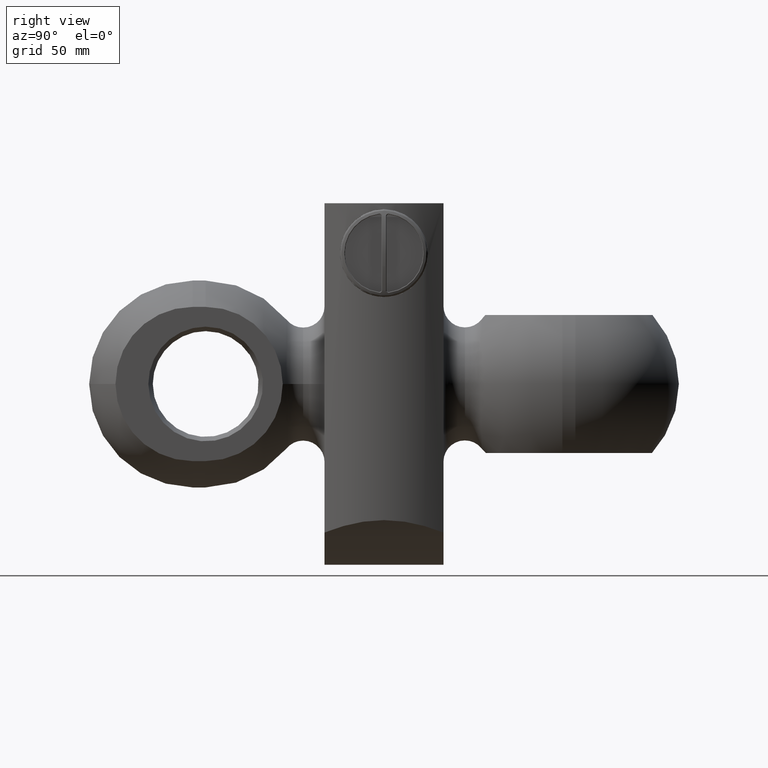
[diagram: clean part render]
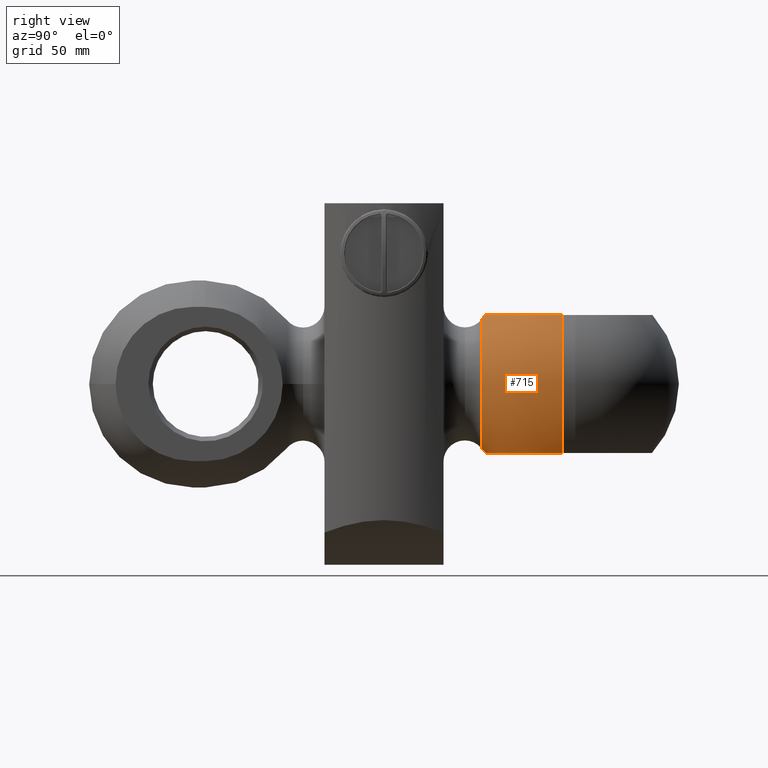
[diagram: same view with one face highlighted and labeled with its STEP entity id]
A machine part, right view. The second image highlights one B-rep face of the part: STEP entity #715.
In plain terms, the highlighted spherical surface has radius 43.5 mm.
Its self-contained STEP definition (entity closure, byte-faithful):
#28=SPHERICAL_SURFACE('',#843,43.5);
#107=FACE_OUTER_BOUND('',#155,.T.);
#155=EDGE_LOOP('',(#620,#621,#622,#623,#624,#625,#626,#627,#628));
#268=CIRCLE('',#834,32.422985673747);
#270=CIRCLE('',#837,32.422985673747);
#271=CIRCLE('',#838,32.422985673747);
#274=CIRCLE('',#842,43.5);
#275=CIRCLE('',#844,43.5);
#276=CIRCLE('',#845,27.1771428571429);
#277=CIRCLE('',#846,27.1771428571429);
#278=CIRCLE('',#847,43.5);
#341=VERTEX_POINT('',#1541);
#342=VERTEX_POINT('',#1543);
#345=VERTEX_POINT('',#1550);
#346=VERTEX_POINT('',#1552);
#347=VERTEX_POINT('',#1554);
#349=VERTEX_POINT('',#1563);
#350=VERTEX_POINT('',#1565);
#434=EDGE_CURVE('',#342,#341,#268,.T.);
#438=EDGE_CURVE('',#346,#345,#270,.T.);
#439=EDGE_CURVE('',#347,#346,#271,.T.);
#443=EDGE_CURVE('',#341,#347,#274,.T.);
#444=EDGE_CURVE('',#346,#349,#275,.T.);
#445=EDGE_CURVE('',#350,#349,#276,.T.);
#446=EDGE_CURVE('',#349,#350,#277,.T.);
#447=EDGE_CURVE('',#345,#342,#278,.T.);
#620=ORIENTED_EDGE('',*,*,#434,.T.);
#621=ORIENTED_EDGE('',*,*,#443,.T.);
#622=ORIENTED_EDGE('',*,*,#439,.T.);
#623=ORIENTED_EDGE('',*,*,#444,.T.);
#624=ORIENTED_EDGE('',*,*,#445,.F.);
#625=ORIENTED_EDGE('',*,*,#446,.F.);
#626=ORIENTED_EDGE('',*,*,#444,.F.);
#627=ORIENTED_EDGE('',*,*,#438,.T.);
#628=ORIENTED_EDGE('',*,*,#447,.T.);
#715=ADVANCED_FACE('',(#107),#28,.T.);
#834=AXIS2_PLACEMENT_3D('',#1544,#1037,#1038);
#837=AXIS2_PLACEMENT_3D('',#1553,#1045,#1046);
#838=AXIS2_PLACEMENT_3D('',#1555,#1047,#1048);
#842=AXIS2_PLACEMENT_3D('',#1561,#1056,#1057);
#843=AXIS2_PLACEMENT_3D('',#1562,#1058,#1059);
#844=AXIS2_PLACEMENT_3D('',#1564,#1060,#1061);
#845=AXIS2_PLACEMENT_3D('',#1566,#1062,#1063);
#846=AXIS2_PLACEMENT_3D('',#1567,#1064,#1065);
#847=AXIS2_PLACEMENT_3D('',#1568,#1066,#1067);
#1037=DIRECTION('center_axis',(0.,0.,1.));
#1038=DIRECTION('ref_axis',(0.,1.,0.));
#1045=DIRECTION('center_axis',(0.,0.,-1.));
#1046=DIRECTION('ref_axis',(0.,-1.,0.));
#1047=DIRECTION('center_axis',(0.,0.,-1.));
#1048=DIRECTION('ref_axis',(0.,-1.,0.));
#1056=DIRECTION('center_axis',(0.,-1.,0.));
#1057=DIRECTION('ref_axis',(1.,0.,0.));
#1058=DIRECTION('center_axis',(0.,1.,-6.12323399573677E-17));
#1059=DIRECTION('ref_axis',(0.,0.,-1.));
#1060=DIRECTION('center_axis',(1.,0.,-1.22464679914735E-16));
#1061=DIRECTION('ref_axis',(1.22464679914735E-16,0.,1.));
#1062=DIRECTION('center_axis',(0.,-1.,0.));
#1063=DIRECTION('ref_axis',(1.,0.,0.));
#1064=DIRECTION('center_axis',(0.,-1.,0.));
#1065=DIRECTION('ref_axis',(1.,0.,0.));
#1066=DIRECTION('center_axis',(0.,-1.,0.));
#1067=DIRECTION('ref_axis',(1.,0.,0.));
#1541=CARTESIAN_POINT('',(32.422985673747,75.,-29.));
#1543=CARTESIAN_POINT('',(-32.422985673747,75.,-29.));
#1544=CARTESIAN_POINT('Origin',(0.,75.,-29.));
#1550=CARTESIAN_POINT('',(-32.422985673747,75.,29.));
#1552=CARTESIAN_POINT('',(3.55147571752732E-15,42.577014326253,29.));
#1553=CARTESIAN_POINT('Origin',(0.,75.,29.));
#1554=CARTESIAN_POINT('',(32.422985673747,75.,29.));
#1555=CARTESIAN_POINT('Origin',(0.,75.,29.));
#1561=CARTESIAN_POINT('Origin',(1.59333708802372E-15,75.,0.));
#1562=CARTESIAN_POINT('Origin',(0.,75.,0.));
#1563=CARTESIAN_POINT('',(3.32824010099704E-15,41.0345336242464,27.1771428571429));
#1564=CARTESIAN_POINT('Origin',(0.,75.,0.));
#1565=CARTESIAN_POINT('',(-27.1771428571429,41.0345336242464,-3.32824010099704E-15));
#1566=CARTESIAN_POINT('Origin',(0.,41.0345336242464,0.));
#1567=CARTESIAN_POINT('Origin',(0.,41.0345336242464,0.));
#1568=CARTESIAN_POINT('Origin',(1.59333708802372E-15,75.,0.));